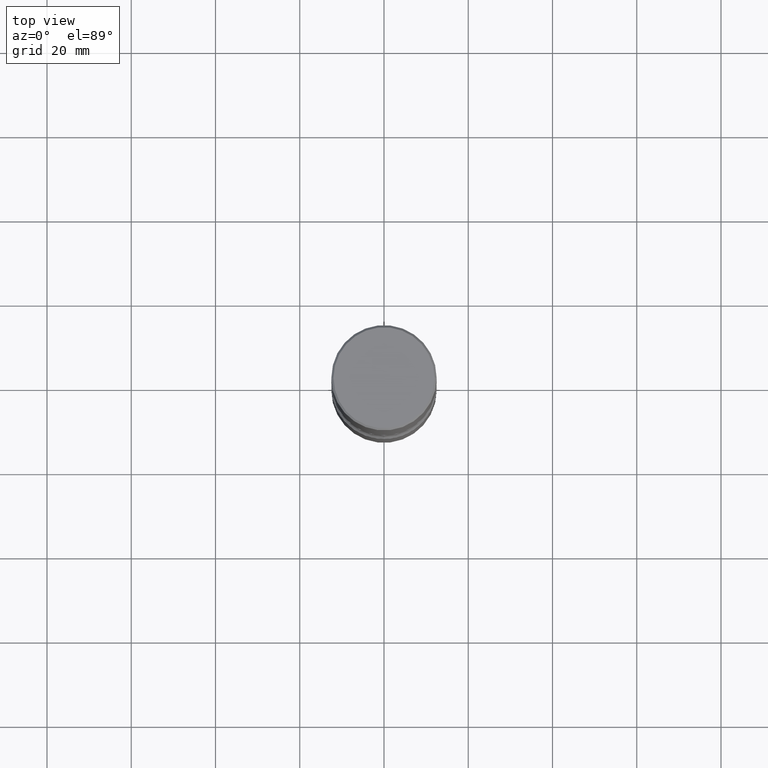
[diagram: clean part render]
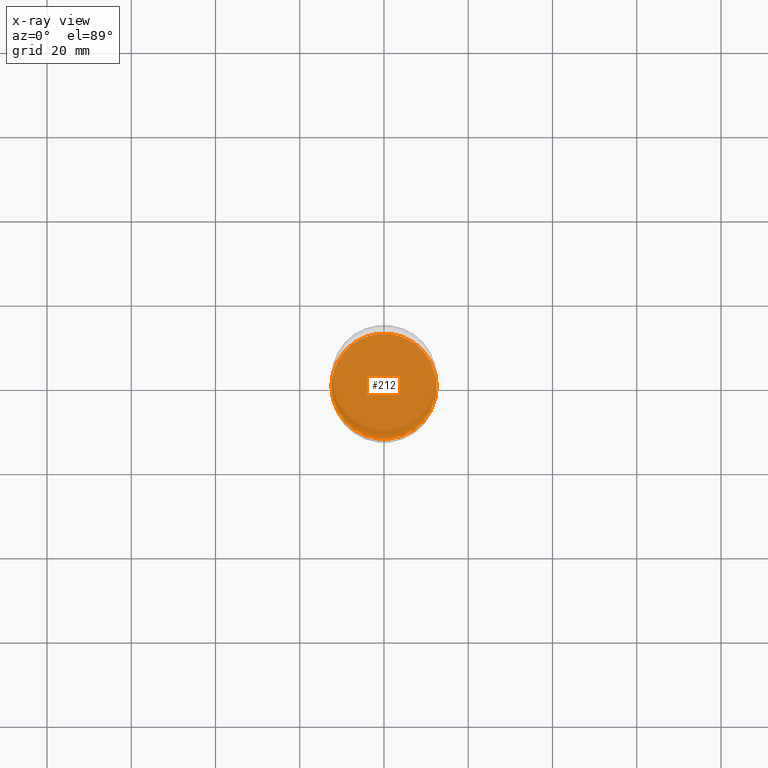
[diagram: x-ray — body ghosted, one internal face saturated and labeled with its STEP entity id]
A machine part, top view, then the same camera in x-ray: the body is ghosted and one INTERNAL B-rep face — a face not visible from any outside direction — is saturated and labeled: STEP entity #212.
In plain terms, the highlighted planar face has unit normal (0, -0, -1).
Its self-contained STEP definition (entity closure, byte-faithful):
#11 = DIRECTION ( 'NONE',  ( -1.000000000000000000, 6.982962677686265922E-15, -4.876176775795935793E-29 ) ) ;
#20 = VERTEX_POINT ( 'NONE', #547 ) ;
#54 = DIRECTION ( 'NONE',  ( -2.445468806185136597E-29, 3.491481338843145583E-15, 1.000000000000000000 ) ) ;
#64 = EDGE_LOOP ( 'NONE', ( #458, #334 ) ) ;
#98 = DIRECTION ( 'NONE',  ( 1.000000000000000000, -6.982962677686270655E-15, 0.000000000000000000 ) ) ;
#107 = CIRCLE ( 'NONE', #381, 0.4921500000000002539 ) ;
#142 = CARTESIAN_POINT ( 'NONE',  ( 0.4921500000000002539, -1.951947557293647774E-14, -4.606299999999999173 ) ) ;
#143 = DIRECTION ( 'NONE',  ( -2.445468806185136597E-29, 3.491481338843145583E-15, 1.000000000000000000 ) ) ;
#174 = EDGE_CURVE ( 'NONE', #20, #200, #107, .T. ) ;
#183 = DIRECTION ( 'NONE',  ( 2.438088387897960049E-29, -3.491481338843145188E-15, -1.000000000000000000 ) ) ;
#200 = VERTEX_POINT ( 'NONE', #142 ) ;
#212 = ADVANCED_FACE ( 'NONE', ( #558 ), #230, .F. ) ;
#230 = PLANE ( 'NONE',  #484 ) ;
#237 = EDGE_CURVE ( 'NONE', #200, #20, #473, .T. ) ;
#271 = CARTESIAN_POINT ( 'NONE',  ( 1.126456296193059450E-28, -1.608281049111318039E-14, -4.606299999999999173 ) ) ;
#334 = ORIENTED_EDGE ( 'NONE', *, *, #174, .T. ) ;
#344 = CARTESIAN_POINT ( 'NONE',  ( 1.126456296193059450E-28, -1.608281049111318039E-14, -4.606299999999999173 ) ) ;
#345 = CARTESIAN_POINT ( 'NONE',  ( 1.126456296193059450E-28, -1.608281049111318039E-14, -4.606299999999999173 ) ) ;
#360 = AXIS2_PLACEMENT_3D ( 'NONE', #344, #143, #434 ) ;
#381 = AXIS2_PLACEMENT_3D ( 'NONE', #345, #54, #98 ) ;
#434 = DIRECTION ( 'NONE',  ( 1.000000000000000000, -6.982962677686270655E-15, 0.000000000000000000 ) ) ;
#458 = ORIENTED_EDGE ( 'NONE', *, *, #237, .T. ) ;
#473 = CIRCLE ( 'NONE', #360, 0.4921500000000002539 ) ;
#484 = AXIS2_PLACEMENT_3D ( 'NONE', #271, #183, #11 ) ;
#547 = CARTESIAN_POINT ( 'NONE',  ( -0.4921500000000002539, -1.615975471550968765E-14, -4.606299999999999173 ) ) ;
#558 = FACE_OUTER_BOUND ( 'NONE', #64, .T. ) ;